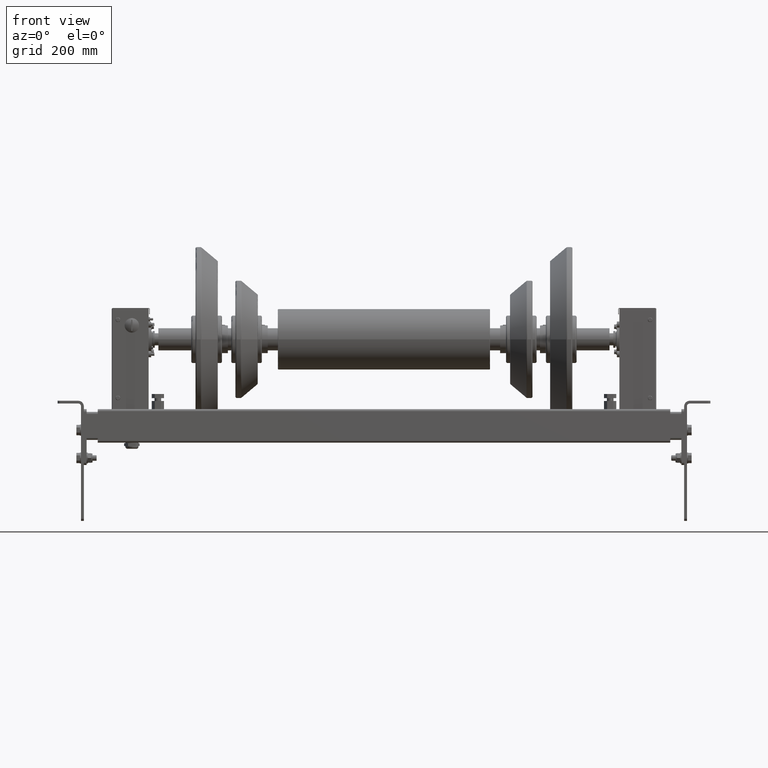
[diagram: clean part render]
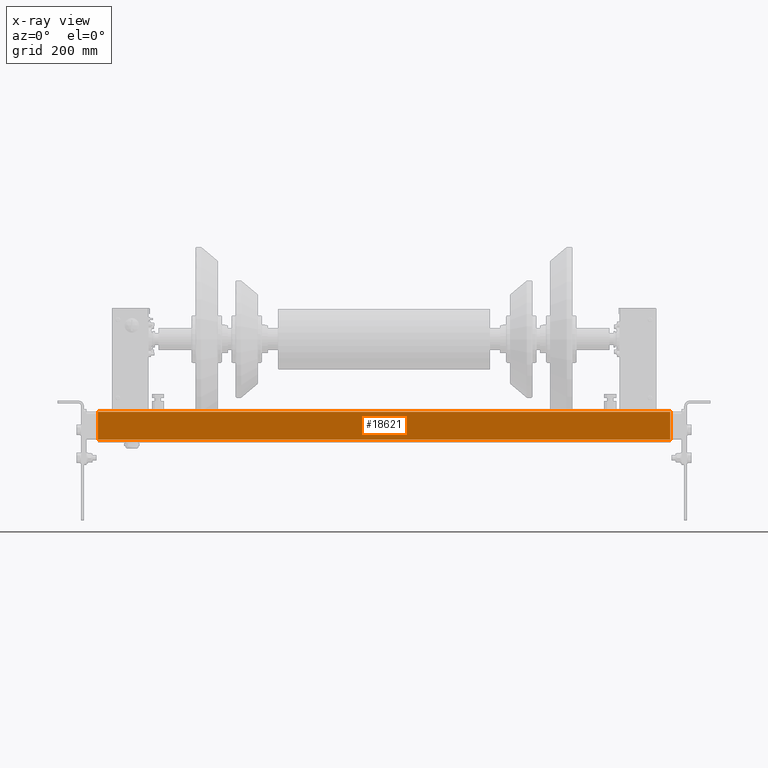
[diagram: x-ray — body ghosted, one internal face saturated and labeled with its STEP entity id]
A machine part, front view, then the same camera in x-ray: the body is ghosted and one INTERNAL B-rep face — a face not visible from any outside direction — is saturated and labeled: STEP entity #18621.
In plain terms, the highlighted planar face has unit normal (0, -1, 0).
Its self-contained STEP definition (entity closure, byte-faithful):
#18582=CARTESIAN_POINT('',(16.0,-24.999999999999659,-405.0));
#18583=DIRECTION('',(-1.0,0.0,0.0));
#18584=DIRECTION('',(0.0,0.0,1.0));
#18585=AXIS2_PLACEMENT_3D('',#18582,#18583,#18584);
#18586=PLANE('',#18585);
#18587=CARTESIAN_POINT('',(16.0,-24.999999999999659,620.0));
#18588=VERTEX_POINT('',#18587);
#18589=CARTESIAN_POINT('',(16.0,25.000000000000341,620.0));
#18590=VERTEX_POINT('',#18589);
#18591=CARTESIAN_POINT('',(16.0,-24.999999999999659,620.0));
#18592=DIRECTION('',(0.0,1.0,0.0));
#18593=VECTOR('',#18592,50.0);
#18594=LINE('',#18591,#18593);
#18595=EDGE_CURVE('',#18588,#18590,#18594,.T.);
#18596=ORIENTED_EDGE('',*,*,#18595,.T.);
#18597=CARTESIAN_POINT('',(16.0,25.000000000000341,-405.0));
#18598=VERTEX_POINT('',#18597);
#18599=CARTESIAN_POINT('',(16.0,25.000000000000341,-405.0));
#18600=DIRECTION('',(0.0,0.0,1.0));
#18601=VECTOR('',#18600,1025.0);
#18602=LINE('',#18599,#18601);
#18603=EDGE_CURVE('',#18598,#18590,#18602,.T.);
#18604=ORIENTED_EDGE('',*,*,#18603,.F.);
#18605=CARTESIAN_POINT('',(16.0,-24.999999999999659,-405.0));
#18606=VERTEX_POINT('',#18605);
#18607=CARTESIAN_POINT('',(16.0,25.000000000000341,-405.0));
#18608=DIRECTION('',(0.0,-1.0,0.0));
#18609=VECTOR('',#18608,50.0);
#18610=LINE('',#18607,#18609);
#18611=EDGE_CURVE('',#18598,#18606,#18610,.T.);
#18612=ORIENTED_EDGE('',*,*,#18611,.T.);
#18613=CARTESIAN_POINT('',(16.0,-24.999999999999659,-405.0));
#18614=DIRECTION('',(0.0,0.0,1.0));
#18615=VECTOR('',#18614,1025.0);
#18616=LINE('',#18613,#18615);
#18617=EDGE_CURVE('',#18606,#18588,#18616,.T.);
#18618=ORIENTED_EDGE('',*,*,#18617,.T.);
#18619=EDGE_LOOP('',(#18596,#18604,#18612,#18618));
#18620=FACE_OUTER_BOUND('',#18619,.T.);
#18621=ADVANCED_FACE('',(#18620),#18586,.T.);